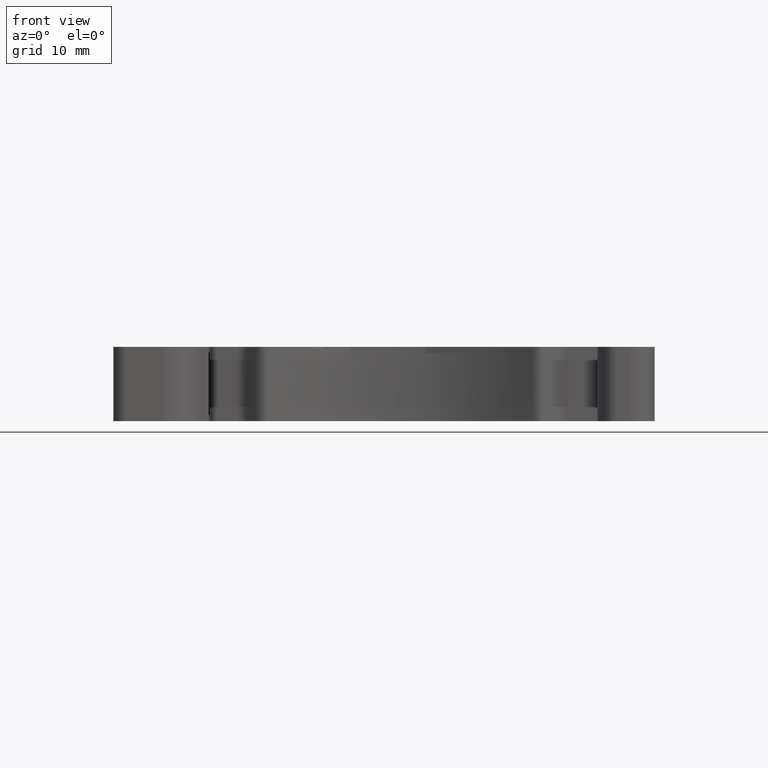
[diagram: clean part render]
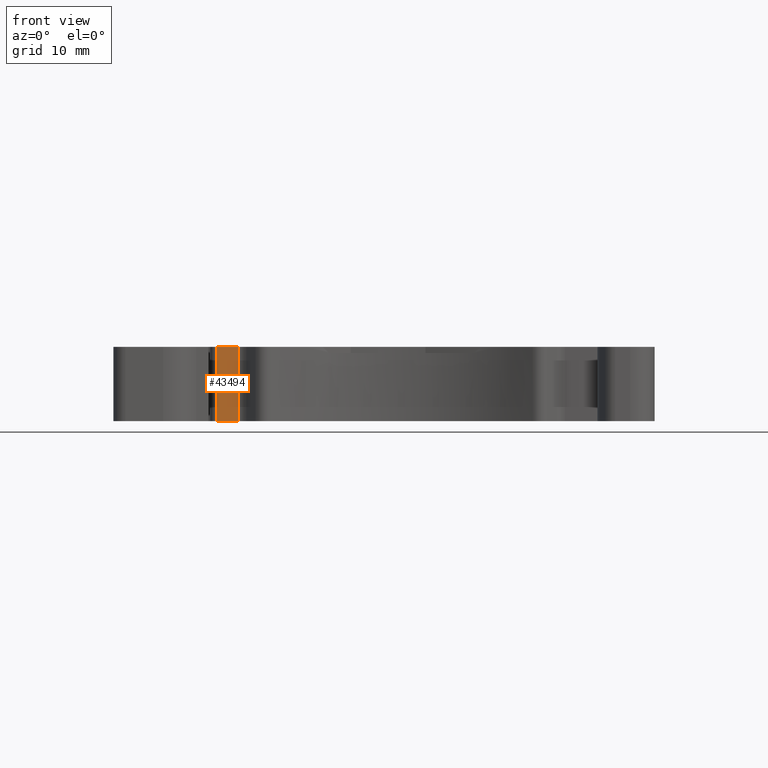
[diagram: same view with one face highlighted and labeled with its STEP entity id]
A machine part, front view. The second image highlights one B-rep face of the part: STEP entity #43494.
In plain terms, the highlighted planar face has unit normal (0, -1, 0).
Its self-contained STEP definition (entity closure, byte-faithful):
#12416=ORIENTED_EDGE('',*,*,#19302,.F.);
#12417=ORIENTED_EDGE('',*,*,#19304,.T.);
#12418=ORIENTED_EDGE('',*,*,#19305,.F.);
#12419=ORIENTED_EDGE('',*,*,#19306,.F.);
#19302=EDGE_CURVE('',#23490,#23491,#29166,.T.);
#19304=EDGE_CURVE('',#23490,#23492,#29167,.T.);
#19305=EDGE_CURVE('',#23493,#23492,#29168,.T.);
#19306=EDGE_CURVE('',#23491,#23493,#29169,.T.);
#23490=VERTEX_POINT('',#69669);
#23491=VERTEX_POINT('',#69671);
#23492=VERTEX_POINT('',#69675);
#23493=VERTEX_POINT('',#69677);
#29166=LINE('',#69670,#34860);
#29167=LINE('',#69674,#34861);
#29168=LINE('',#69676,#34862);
#29169=LINE('',#69678,#34863);
#34860=VECTOR('',#56776,1000.);
#34861=VECTOR('',#56781,1000.);
#34862=VECTOR('',#56782,1000.);
#34863=VECTOR('',#56783,1000.);
#37105=EDGE_LOOP('',(#12416,#12417,#12418,#12419));
#39361=FACE_BOUND('',#37105,.T.);
#41341=PLANE('',#46068);
#43494=ADVANCED_FACE('',(#39361),#41341,.T.);
#46068=AXIS2_PLACEMENT_3D('',#69673,#56779,#56780);
#56776=DIRECTION('',(0.,0.,1.));
#56779=DIRECTION('',(0.,-1.,0.));
#56780=DIRECTION('',(1.,0.,0.));
#56781=DIRECTION('',(1.,0.,0.));
#56782=DIRECTION('',(0.,0.,-1.));
#56783=DIRECTION('',(1.,0.,0.));
#69669=CARTESIAN_POINT('',(-15.23880315036,-4.649996463175,-3.6));
#69670=CARTESIAN_POINT('',(-15.23880315036,-4.649996463175,-3.6));
#69671=CARTESIAN_POINT('',(-15.23880315036,-4.649996463175,2.5));
#69673=CARTESIAN_POINT('',(-15.23880315036,-4.649996463175,-2.5));
#69674=CARTESIAN_POINT('',(-15.23880315036,-4.649996463175,-3.6));
#69675=CARTESIAN_POINT('',(-13.44842047929,-4.649996463175,-3.6));
#69676=CARTESIAN_POINT('',(-13.44842047929,-4.649996463175,2.5));
#69677=CARTESIAN_POINT('',(-13.44842047929,-4.649996463175,2.5));
#69678=CARTESIAN_POINT('',(-15.23880315036,-4.649996463175,2.5));